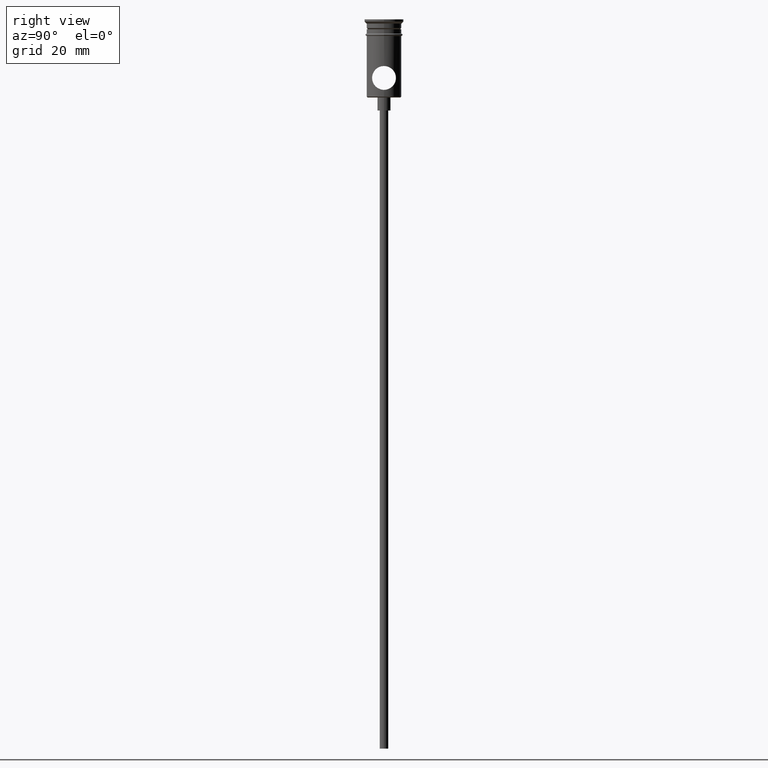
[diagram: clean part render]
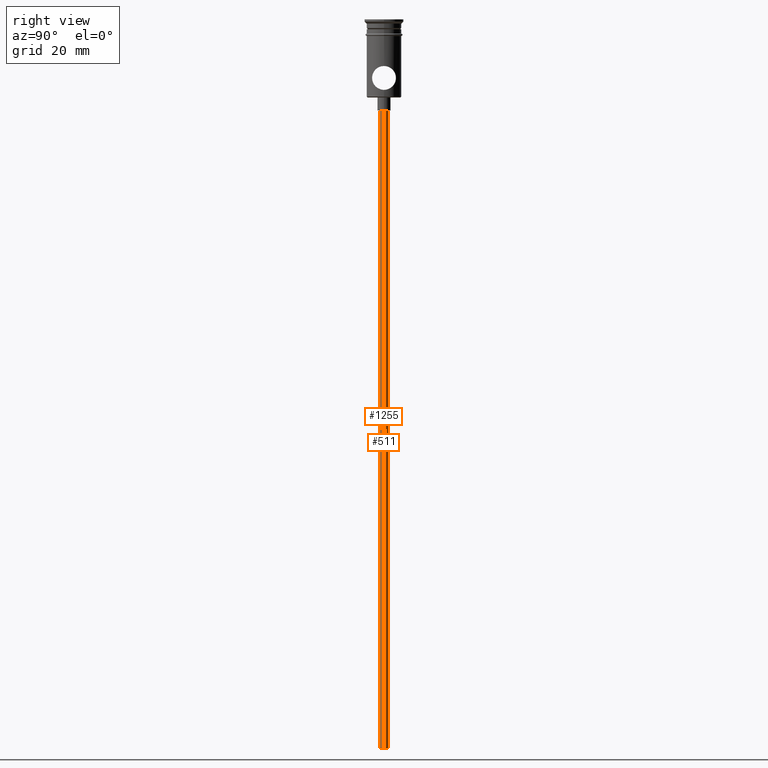
[diagram: same view with one multi-face feature highlighted, each face labeled with its STEP entity id]
A machine part, right view. The highlighted faces form ONE feature: a constant-radius fillet chain: 2 tangent blend faces with common blend radius 1 mm. The faces share edges in the B-rep.
Their STEP definitions:
[1] entity #511 (Cylinder):
#33 = CARTESIAN_POINT ( 'NONE',  ( 0.9999999999999997780, 0.000000000000000000, -167.9999999999999716 ) ) ;
#146 = VECTOR ( 'NONE', #589, 1000.000000000000000 ) ;
#151 = CARTESIAN_POINT ( 'NONE',  ( -0.9999999999999997780, 1.224646799147352961E-16, -167.9999999999999716 ) ) ;
#173 = EDGE_CURVE ( 'NONE', #381, #771, #699, .T. ) ;
#250 = AXIS2_PLACEMENT_3D ( 'NONE', #1117, #1014, #1131 ) ;
#252 = CARTESIAN_POINT ( 'NONE',  ( -0.9999999999999997780, 1.224646799147352961E-16, -20.99999999999999645 ) ) ;
#288 = CARTESIAN_POINT ( 'NONE',  ( 0.000000000000000000, 0.000000000000000000, -20.99999999999999645 ) ) ;
#318 = CARTESIAN_POINT ( 'NONE',  ( 0.9999999999999997780, 0.000000000000000000, -167.9999999999999716 ) ) ;
#319 = CYLINDRICAL_SURFACE ( 'NONE', #250, 0.9999999999999997780 ) ;
#381 = VERTEX_POINT ( 'NONE', #318 ) ;
#399 = DIRECTION ( 'NONE',  ( 0.000000000000000000, 0.000000000000000000, -1.000000000000000000 ) ) ;
#433 = CIRCLE ( 'NONE', #851, 0.9999999999999997780 ) ;
#511 = ADVANCED_FACE ( 'NONE', ( #892 ), #319, .T. ) ;
#525 = CIRCLE ( 'NONE', #831, 0.9999999999999997780 ) ;
#587 = EDGE_CURVE ( 'NONE', #673, #381, #433, .T. ) ;
#589 = DIRECTION ( 'NONE',  ( -0.000000000000000000, -0.000000000000000000, 1.000000000000000000 ) ) ;
#610 = VERTEX_POINT ( 'NONE', #252 ) ;
#618 = VECTOR ( 'NONE', #706, 1000.000000000000000 ) ;
#673 = VERTEX_POINT ( 'NONE', #919 ) ;
#681 = EDGE_CURVE ( 'NONE', #673, #610, #1137, .T. ) ;
#699 = LINE ( 'NONE', #33, #618 ) ;
#706 = DIRECTION ( 'NONE',  ( -0.000000000000000000, -0.000000000000000000, 1.000000000000000000 ) ) ;
#720 = EDGE_CURVE ( 'NONE', #610, #771, #525, .T. ) ;
#771 = VERTEX_POINT ( 'NONE', #830 ) ;
#830 = CARTESIAN_POINT ( 'NONE',  ( 0.9999999999999997780, 0.000000000000000000, -20.99999999999999645 ) ) ;
#831 = AXIS2_PLACEMENT_3D ( 'NONE', #288, #399, #1157 ) ;
#848 = ORIENTED_EDGE ( 'NONE', *, *, #720, .T. ) ;
#851 = AXIS2_PLACEMENT_3D ( 'NONE', #1274, #1120, #981 ) ;
#892 = FACE_OUTER_BOUND ( 'NONE', #1134, .T. ) ;
#919 = CARTESIAN_POINT ( 'NONE',  ( -0.9999999999999997780, 1.224646799147352961E-16, -167.9999999999999716 ) ) ;
#981 = DIRECTION ( 'NONE',  ( -1.000000000000000000, 0.000000000000000000, 0.000000000000000000 ) ) ;
#1002 = ORIENTED_EDGE ( 'NONE', *, *, #587, .F. ) ;
#1014 = DIRECTION ( 'NONE',  ( -0.000000000000000000, -0.000000000000000000, 1.000000000000000000 ) ) ;
#1031 = ORIENTED_EDGE ( 'NONE', *, *, #681, .T. ) ;
#1117 = CARTESIAN_POINT ( 'NONE',  ( 0.000000000000000000, 0.000000000000000000, -167.9999999999999716 ) ) ;
#1120 = DIRECTION ( 'NONE',  ( 0.000000000000000000, 0.000000000000000000, -1.000000000000000000 ) ) ;
#1131 = DIRECTION ( 'NONE',  ( 1.000000000000000000, 0.000000000000000000, 0.000000000000000000 ) ) ;
#1134 = EDGE_LOOP ( 'NONE', ( #1002, #1031, #848, #1410 ) ) ;
#1137 = LINE ( 'NONE', #151, #146 ) ;
#1157 = DIRECTION ( 'NONE',  ( -1.000000000000000000, 0.000000000000000000, 0.000000000000000000 ) ) ;
#1274 = CARTESIAN_POINT ( 'NONE',  ( 0.000000000000000000, 0.000000000000000000, -167.9999999999999716 ) ) ;
#1410 = ORIENTED_EDGE ( 'NONE', *, *, #173, .F. ) ;
[2] entity #1255 (Cylinder):
#8 = DIRECTION ( 'NONE',  ( 1.000000000000000000, 0.000000000000000000, 0.000000000000000000 ) ) ;
#33 = CARTESIAN_POINT ( 'NONE',  ( 0.9999999999999997780, 0.000000000000000000, -167.9999999999999716 ) ) ;
#74 = CIRCLE ( 'NONE', #1279, 0.9999999999999997780 ) ;
#102 = DIRECTION ( 'NONE',  ( -1.000000000000000000, 0.000000000000000000, 0.000000000000000000 ) ) ;
#146 = VECTOR ( 'NONE', #589, 1000.000000000000000 ) ;
#151 = CARTESIAN_POINT ( 'NONE',  ( -0.9999999999999997780, 1.224646799147352961E-16, -167.9999999999999716 ) ) ;
#173 = EDGE_CURVE ( 'NONE', #381, #771, #699, .T. ) ;
#252 = CARTESIAN_POINT ( 'NONE',  ( -0.9999999999999997780, 1.224646799147352961E-16, -20.99999999999999645 ) ) ;
#278 = EDGE_CURVE ( 'NONE', #771, #610, #74, .T. ) ;
#318 = CARTESIAN_POINT ( 'NONE',  ( 0.9999999999999997780, 0.000000000000000000, -167.9999999999999716 ) ) ;
#337 = DIRECTION ( 'NONE',  ( 0.000000000000000000, 0.000000000000000000, -1.000000000000000000 ) ) ;
#342 = CIRCLE ( 'NONE', #948, 0.9999999999999997780 ) ;
#381 = VERTEX_POINT ( 'NONE', #318 ) ;
#420 = CYLINDRICAL_SURFACE ( 'NONE', #921, 0.9999999999999997780 ) ;
#429 = EDGE_LOOP ( 'NONE', ( #823, #866, #1209, #1251 ) ) ;
#534 = DIRECTION ( 'NONE',  ( -0.000000000000000000, -0.000000000000000000, 1.000000000000000000 ) ) ;
#589 = DIRECTION ( 'NONE',  ( -0.000000000000000000, -0.000000000000000000, 1.000000000000000000 ) ) ;
#610 = VERTEX_POINT ( 'NONE', #252 ) ;
#618 = VECTOR ( 'NONE', #706, 1000.000000000000000 ) ;
#661 = CARTESIAN_POINT ( 'NONE',  ( 0.000000000000000000, 0.000000000000000000, -167.9999999999999716 ) ) ;
#663 = DIRECTION ( 'NONE',  ( -1.000000000000000000, 0.000000000000000000, 0.000000000000000000 ) ) ;
#673 = VERTEX_POINT ( 'NONE', #919 ) ;
#681 = EDGE_CURVE ( 'NONE', #673, #610, #1137, .T. ) ;
#699 = LINE ( 'NONE', #33, #618 ) ;
#706 = DIRECTION ( 'NONE',  ( -0.000000000000000000, -0.000000000000000000, 1.000000000000000000 ) ) ;
#750 = CARTESIAN_POINT ( 'NONE',  ( 0.000000000000000000, 0.000000000000000000, -167.9999999999999716 ) ) ;
#771 = VERTEX_POINT ( 'NONE', #830 ) ;
#823 = ORIENTED_EDGE ( 'NONE', *, *, #681, .F. ) ;
#830 = CARTESIAN_POINT ( 'NONE',  ( 0.9999999999999997780, 0.000000000000000000, -20.99999999999999645 ) ) ;
#866 = ORIENTED_EDGE ( 'NONE', *, *, #904, .F. ) ;
#887 = DIRECTION ( 'NONE',  ( 0.000000000000000000, 0.000000000000000000, -1.000000000000000000 ) ) ;
#904 = EDGE_CURVE ( 'NONE', #381, #673, #342, .T. ) ;
#919 = CARTESIAN_POINT ( 'NONE',  ( -0.9999999999999997780, 1.224646799147352961E-16, -167.9999999999999716 ) ) ;
#921 = AXIS2_PLACEMENT_3D ( 'NONE', #750, #534, #8 ) ;
#948 = AXIS2_PLACEMENT_3D ( 'NONE', #661, #887, #102 ) ;
#1137 = LINE ( 'NONE', #151, #146 ) ;
#1208 = CARTESIAN_POINT ( 'NONE',  ( 0.000000000000000000, 0.000000000000000000, -20.99999999999999645 ) ) ;
#1209 = ORIENTED_EDGE ( 'NONE', *, *, #173, .T. ) ;
#1251 = ORIENTED_EDGE ( 'NONE', *, *, #278, .T. ) ;
#1255 = ADVANCED_FACE ( 'NONE', ( #1311 ), #420, .T. ) ;
#1279 = AXIS2_PLACEMENT_3D ( 'NONE', #1208, #337, #663 ) ;
#1311 = FACE_OUTER_BOUND ( 'NONE', #429, .T. ) ;